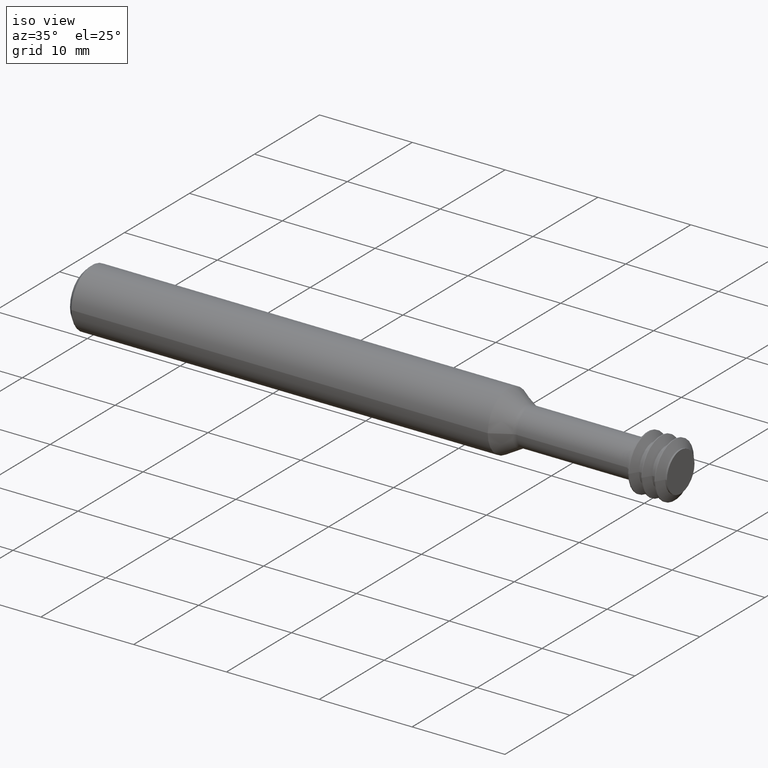
[diagram: clean part render]
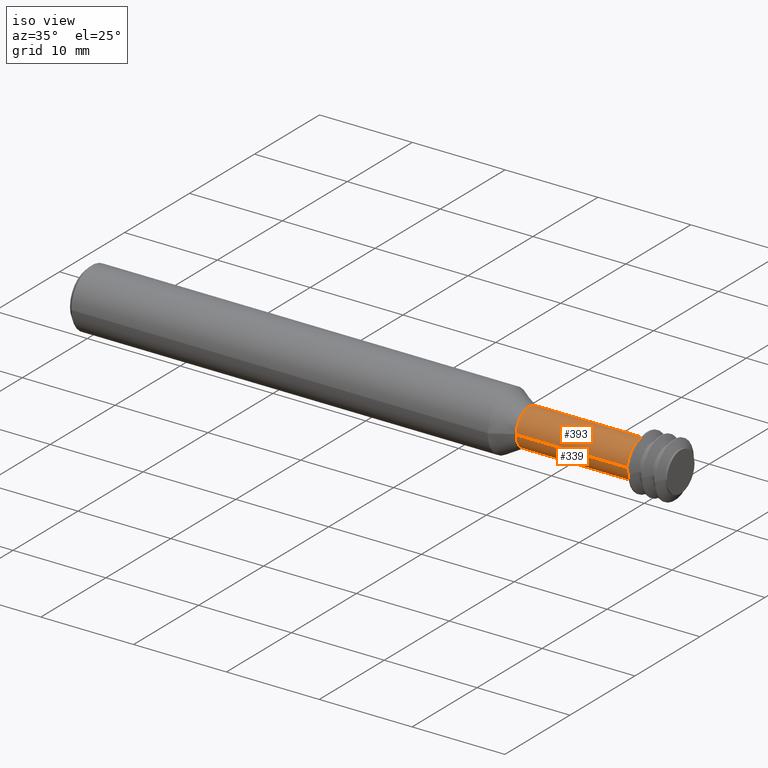
[diagram: same view with one multi-face feature highlighted, each face labeled with its STEP entity id]
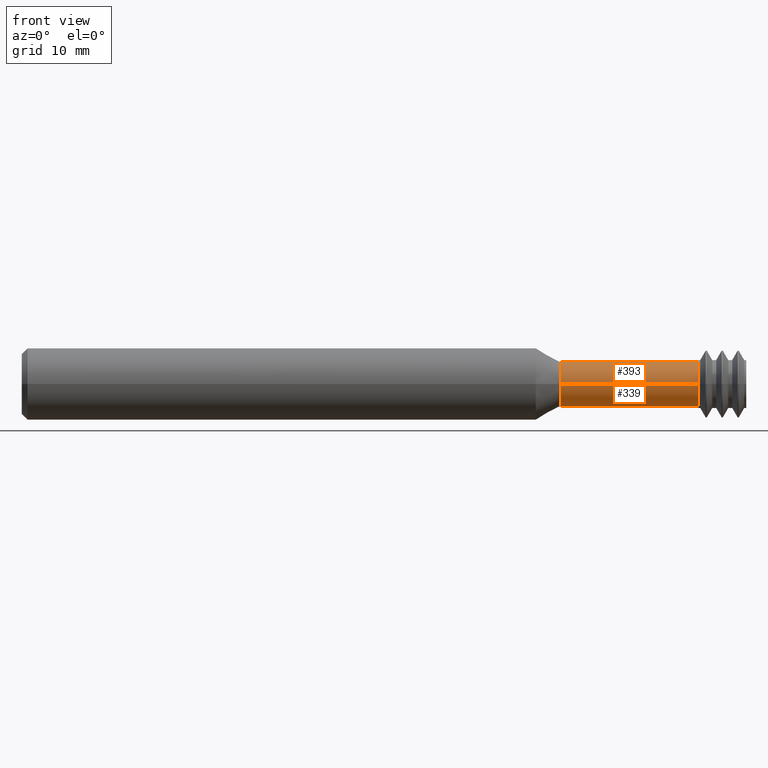
[diagram: same view with one multi-face feature highlighted, each face labeled with its STEP entity id]
A machine part, iso view. The highlighted faces form ONE feature: a constant-radius fillet chain: 2 tangent blend faces with common blend radius 1.9812 mm. The faces share edges in the B-rep.
A second angle (front view) of the same feature is appended — it is thin or edge-on in the first view.
Their STEP definitions:
[1] entity #393 (Cylinder):
#31 = DIRECTION ( 'NONE',  ( -1.000000000000000000, 2.239313081137374464E-19, -0.000000000000000000 ) ) ;
#61 = VERTEX_POINT ( 'NONE', #455 ) ;
#92 = ORIENTED_EDGE ( 'NONE', *, *, #150, .F. ) ;
#111 = AXIS2_PLACEMENT_3D ( 'NONE', #643, #906, #889 ) ;
#150 = EDGE_CURVE ( 'NONE', #283, #810, #1035, .T. ) ;
#161 = VECTOR ( 'NONE', #565, 39.37007874015748143 ) ;
#170 = CARTESIAN_POINT ( 'NONE',  ( 2.350000000000000089, 0.07800000000000002764, 9.552245033349358517E-18 ) ) ;
#184 = CARTESIAN_POINT ( 'NONE',  ( 1.873698729810777897, -0.07800000000000006928, 0.000000000000000000 ) ) ;
#201 = EDGE_CURVE ( 'NONE', #562, #61, #832, .T. ) ;
#214 = CARTESIAN_POINT ( 'NONE',  ( 2.350000000000000089, -0.07800000000000002764, 0.000000000000000000 ) ) ;
#225 = EDGE_CURVE ( 'NONE', #562, #810, #318, .T. ) ;
#283 = VERTEX_POINT ( 'NONE', #184 ) ;
#301 = DIRECTION ( 'NONE',  ( -1.000000000000000000, 2.239313081137374464E-19, -0.000000000000000000 ) ) ;
#304 = CARTESIAN_POINT ( 'NONE',  ( 1.873698729810777897, -6.191759379426502932E-19, 0.000000000000000000 ) ) ;
#318 = LINE ( 'NONE', #170, #161 ) ;
#380 = ORIENTED_EDGE ( 'NONE', *, *, #201, .F. ) ;
#393 = ADVANCED_FACE ( 'NONE', ( #517 ), #437, .T. ) ;
#416 = ORIENTED_EDGE ( 'NONE', *, *, #225, .T. ) ;
#437 = CYLINDRICAL_SURFACE ( 'NONE', #641, 0.07800000000000002764 ) ;
#454 = AXIS2_PLACEMENT_3D ( 'NONE', #304, #884, #726 ) ;
#455 = CARTESIAN_POINT ( 'NONE',  ( 2.350000000000000089, -0.07800000000000002764, 0.000000000000000000 ) ) ;
#475 = LINE ( 'NONE', #214, #866 ) ;
#517 = FACE_OUTER_BOUND ( 'NONE', #1004, .T. ) ;
#562 = VERTEX_POINT ( 'NONE', #819 ) ;
#565 = DIRECTION ( 'NONE',  ( -1.000000000000000000, 2.239313081137374464E-19, -0.000000000000000000 ) ) ;
#590 = ORIENTED_EDGE ( 'NONE', *, *, #944, .F. ) ;
#641 = AXIS2_PLACEMENT_3D ( 'NONE', #765, #31, #684 ) ;
#643 = CARTESIAN_POINT ( 'NONE',  ( 2.350000000000000089, -7.258347044323575049E-19, 0.000000000000000000 ) ) ;
#684 = DIRECTION ( 'NONE',  ( 0.000000000000000000, -1.000000000000000000, 0.000000000000000000 ) ) ;
#726 = DIRECTION ( 'NONE',  ( 0.000000000000000000, -1.000000000000000000, 0.000000000000000000 ) ) ;
#765 = CARTESIAN_POINT ( 'NONE',  ( 2.350000000000000089, -7.258347044323575049E-19, 0.000000000000000000 ) ) ;
#810 = VERTEX_POINT ( 'NONE', #1009 ) ;
#819 = CARTESIAN_POINT ( 'NONE',  ( 2.350000000000000089, 0.07800000000000002764, 9.552245033349358517E-18 ) ) ;
#832 = CIRCLE ( 'NONE', #111, 0.07800000000000002764 ) ;
#866 = VECTOR ( 'NONE', #301, 39.37007874015748143 ) ;
#884 = DIRECTION ( 'NONE',  ( -1.000000000000000000, 2.239313081137374464E-19, -0.000000000000000000 ) ) ;
#889 = DIRECTION ( 'NONE',  ( 0.000000000000000000, 1.000000000000000000, 0.000000000000000000 ) ) ;
#906 = DIRECTION ( 'NONE',  ( 1.000000000000000000, -2.239313081137374464E-19, 0.000000000000000000 ) ) ;
#944 = EDGE_CURVE ( 'NONE', #61, #283, #475, .T. ) ;
#1004 = EDGE_LOOP ( 'NONE', ( #380, #416, #92, #590 ) ) ;
#1009 = CARTESIAN_POINT ( 'NONE',  ( 1.873698729810777897, 0.07800000000000006928, 9.757334483877418539E-18 ) ) ;
#1035 = CIRCLE ( 'NONE', #454, 0.07800000000000006928 ) ;
[2] entity #339 (Cylinder):
#61 = VERTEX_POINT ( 'NONE', #455 ) ;
#142 = CIRCLE ( 'NONE', #470, 0.07800000000000002764 ) ;
#161 = VECTOR ( 'NONE', #565, 39.37007874015748143 ) ;
#170 = CARTESIAN_POINT ( 'NONE',  ( 2.350000000000000089, 0.07800000000000002764, 9.552245033349358517E-18 ) ) ;
#184 = CARTESIAN_POINT ( 'NONE',  ( 1.873698729810777897, -0.07800000000000006928, 0.000000000000000000 ) ) ;
#214 = CARTESIAN_POINT ( 'NONE',  ( 2.350000000000000089, -0.07800000000000002764, 0.000000000000000000 ) ) ;
#225 = EDGE_CURVE ( 'NONE', #562, #810, #318, .T. ) ;
#262 = ORIENTED_EDGE ( 'NONE', *, *, #752, .F. ) ;
#267 = DIRECTION ( 'NONE',  ( 1.000000000000000000, -2.239313081137374464E-19, 0.000000000000000000 ) ) ;
#269 = DIRECTION ( 'NONE',  ( -1.000000000000000000, 2.239313081137374464E-19, -0.000000000000000000 ) ) ;
#283 = VERTEX_POINT ( 'NONE', #184 ) ;
#301 = DIRECTION ( 'NONE',  ( -1.000000000000000000, 2.239313081137374464E-19, -0.000000000000000000 ) ) ;
#318 = LINE ( 'NONE', #170, #161 ) ;
#332 = AXIS2_PLACEMENT_3D ( 'NONE', #666, #269, #753 ) ;
#339 = ADVANCED_FACE ( 'NONE', ( #515 ), #757, .T. ) ;
#340 = DIRECTION ( 'NONE',  ( 0.000000000000000000, 1.000000000000000000, 0.000000000000000000 ) ) ;
#364 = EDGE_CURVE ( 'NONE', #61, #562, #142, .T. ) ;
#374 = ORIENTED_EDGE ( 'NONE', *, *, #225, .F. ) ;
#455 = CARTESIAN_POINT ( 'NONE',  ( 2.350000000000000089, -0.07800000000000002764, 0.000000000000000000 ) ) ;
#470 = AXIS2_PLACEMENT_3D ( 'NONE', #754, #267, #340 ) ;
#475 = LINE ( 'NONE', #214, #866 ) ;
#515 = FACE_OUTER_BOUND ( 'NONE', #972, .T. ) ;
#562 = VERTEX_POINT ( 'NONE', #819 ) ;
#565 = DIRECTION ( 'NONE',  ( -1.000000000000000000, 2.239313081137374464E-19, -0.000000000000000000 ) ) ;
#587 = DIRECTION ( 'NONE',  ( 0.000000000000000000, -1.000000000000000000, 0.000000000000000000 ) ) ;
#666 = CARTESIAN_POINT ( 'NONE',  ( 1.873698729810777897, -6.191759379426502932E-19, 0.000000000000000000 ) ) ;
#712 = CIRCLE ( 'NONE', #332, 0.07800000000000006928 ) ;
#745 = DIRECTION ( 'NONE',  ( -1.000000000000000000, 2.239313081137374464E-19, -0.000000000000000000 ) ) ;
#752 = EDGE_CURVE ( 'NONE', #810, #283, #712, .T. ) ;
#753 = DIRECTION ( 'NONE',  ( 0.000000000000000000, -1.000000000000000000, 0.000000000000000000 ) ) ;
#754 = CARTESIAN_POINT ( 'NONE',  ( 2.350000000000000089, -7.258347044323575049E-19, 0.000000000000000000 ) ) ;
#757 = CYLINDRICAL_SURFACE ( 'NONE', #764, 0.07800000000000002764 ) ;
#764 = AXIS2_PLACEMENT_3D ( 'NONE', #991, #745, #587 ) ;
#810 = VERTEX_POINT ( 'NONE', #1009 ) ;
#819 = CARTESIAN_POINT ( 'NONE',  ( 2.350000000000000089, 0.07800000000000002764, 9.552245033349358517E-18 ) ) ;
#866 = VECTOR ( 'NONE', #301, 39.37007874015748143 ) ;
#923 = ORIENTED_EDGE ( 'NONE', *, *, #944, .T. ) ;
#944 = EDGE_CURVE ( 'NONE', #61, #283, #475, .T. ) ;
#972 = EDGE_LOOP ( 'NONE', ( #374, #1020, #923, #262 ) ) ;
#991 = CARTESIAN_POINT ( 'NONE',  ( 2.350000000000000089, -7.258347044323575049E-19, 0.000000000000000000 ) ) ;
#1009 = CARTESIAN_POINT ( 'NONE',  ( 1.873698729810777897, 0.07800000000000006928, 9.757334483877418539E-18 ) ) ;
#1020 = ORIENTED_EDGE ( 'NONE', *, *, #364, .F. ) ;